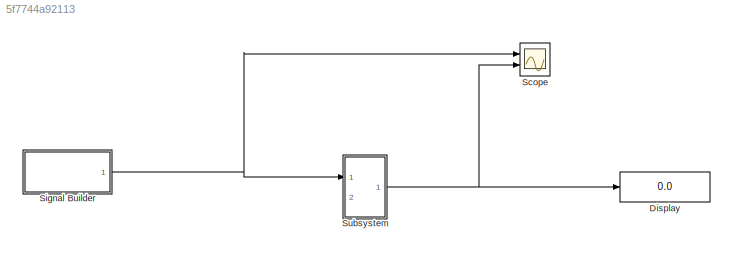
MODEL slx_5f7744a92113
KIND model
CONFIG AbsTol = auto
CONFIG EnableMultiTasking = off
CONFIG FixedStep = auto
CONFIG MaxStep = auto
CONFIG MinStep = auto
CONFIG RelTol = 1e-3
CONFIG SampleTimeConstraint = Unconstrained
CONFIG SolverName = VariableStepAuto
CONFIG StartTime = 0.0
CONFIG StopTime = 10.0
BLOCK [Display] Display
  Decimation = 1
  Ports = [1]
BLOCK [Scope] Scope
  Floating = off
  NumInputPorts = 2
  Ports = [2]
  ScopeSpecificationString = Simulink.scopes.TimeScopeBlockCfg('CurrentConfiguration', extmgr.ConfigurationSet(extmgr.Configuration('Core','General UI',true),extmgr.Configuration('Core','Source UI',true),extmgr.Configuration('Sources','WiredSimulink',true),extmgr.Configuration('Visuals','Time Domain',true,'SerializedDisplays',{struct('MinYLimReal','-1.25','MaxYLimReal','1.25','YLabelReal','','MinYLimMag','0.00000','MaxYLimMag...<+2074ch>
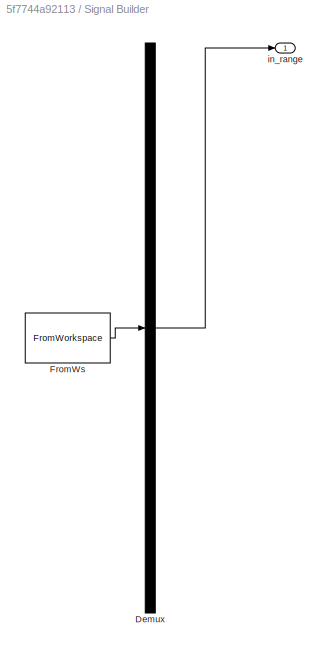
BLOCK [SubSystem] Signal Builder
  ClipboardFcn = sigbuilder_block('clipboard');
  CloseFcn = sigbuilder_block('close');
  ContinueFcn = sigbuilder_block('continue');
  CopyFcn = sigbuilder_block('copy');
  DeleteFcn = sigbuilder_block('delete');
  LoadFcn = sigbuilder_block('load',[437.6 199.2 550.4 400 ]);
  MaskHideContents = on
  ModelCloseFcn = sigbuilder_block('modelClose');
  NameChangeFcn = sigbuilder_block('namechange');
  OpenFcn = sigbuilder_block('open',[437.6 199.2 550.4 400 ]);
  PauseFcn = sigbuilder_block('pause');
  Ports = [0, 1]
  PreSaveFcn = sigbuilder_block('preSave');
  RequestExecContextInheritance = off
  StartFcn = sigbuilder_block('start');
  StopFcn = sigbuilder_block('stop');
  Tag = STV Subsys
BLOCK [Demux] Signal Builder/Demux
  DisplayOption = none
  Outputs = 1
  Ports = [1, 1]
  Tag = STV Demux
BLOCK [FromWorkspace] Signal Builder/FromWs
  Tag = STV FromWs
  VariableName = tuvar
BLOCK [Outport] Signal Builder/in_range
  Tag = STV Outport
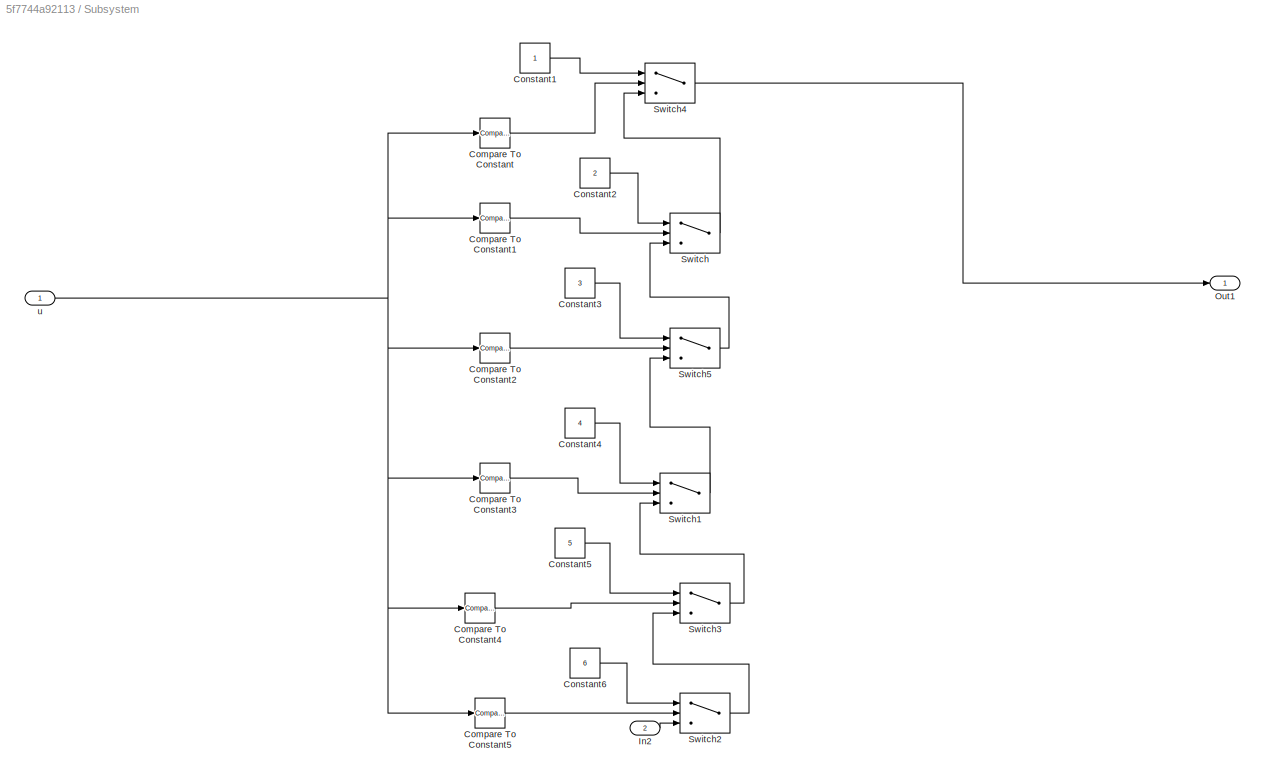
BLOCK [SubSystem] Subsystem
  Ports = [2, 1]
  RequestExecContextInheritance = off
BLOCK [Reference] Subsystem/Compare To Constant  REF=simulink/Logic and Bit
Operations/Compare
To Constant
  Ports = [1, 1]
  SourceBlock = simulink/Logic and Bit\nOperations/Compare\nTo Constant
  SourceProductBaseCode = SL
  SourceType = Compare To Constant
BLOCK [Reference] Subsystem/Compare To Constant1  REF=simulink/Logic and Bit
Operations/Compare
To Constant
  Ports = [1, 1]
  SourceBlock = simulink/Logic and Bit\nOperations/Compare\nTo Constant
  SourceProductBaseCode = SL
  SourceType = Compare To Constant
BLOCK [Reference] Subsystem/Compare To Constant2  REF=simulink/Logic and Bit
Operations/Compare
To Constant
  Ports = [1, 1]
  SourceBlock = simulink/Logic and Bit\nOperations/Compare\nTo Constant
  SourceProductBaseCode = SL
  SourceType = Compare To Constant
BLOCK [Reference] Subsystem/Compare To Constant3  REF=simulink/Logic and Bit
Operations/Compare
To Constant
  Ports = [1, 1]
  SourceBlock = simulink/Logic and Bit\nOperations/Compare\nTo Constant
  SourceProductBaseCode = SL
  SourceType = Compare To Constant
BLOCK [Reference] Subsystem/Compare To Constant4  REF=simulink/Logic and Bit
Operations/Compare
To Constant
  Ports = [1, 1]
  SourceBlock = simulink/Logic and Bit\nOperations/Compare\nTo Constant
  SourceProductBaseCode = SL
  SourceType = Compare To Constant
BLOCK [Reference] Subsystem/Compare To Constant5  REF=simulink/Logic and Bit
Operations/Compare
To Constant
  Ports = [1, 1]
  SourceBlock = simulink/Logic and Bit\nOperations/Compare\nTo Constant
  SourceProductBaseCode = SL
  SourceType = Compare To Constant
BLOCK [Constant] Subsystem/Constant1
BLOCK [Constant] Subsystem/Constant2
  Value = 2
BLOCK [Constant] Subsystem/Constant3
  Value = 3
BLOCK [Constant] Subsystem/Constant4
  Value = 4
BLOCK [Constant] Subsystem/Constant5
  Value = 5
BLOCK [Constant] Subsystem/Constant6
  Value = 6
BLOCK [Inport] Subsystem/In2
  Port = 2
BLOCK [Outport] Subsystem/Out1
BLOCK [Switch] Subsystem/Switch
  InputSameDT = off
  SaturateOnIntegerOverflow = off
BLOCK [Switch] Subsystem/Switch1
  InputSameDT = off
  SaturateOnIntegerOverflow = off
BLOCK [Switch] Subsystem/Switch2
  InputSameDT = off
  SaturateOnIntegerOverflow = off
BLOCK [Switch] Subsystem/Switch3
  InputSameDT = off
  SaturateOnIntegerOverflow = off
BLOCK [Switch] Subsystem/Switch4
  InputSameDT = off
  SaturateOnIntegerOverflow = off
BLOCK [Switch] Subsystem/Switch5
  InputSameDT = off
  SaturateOnIntegerOverflow = off
BLOCK [Inport] Subsystem/u
NET Signal Builder:1 -> Scope:1, Subsystem:1
LINE Subsystem/Compare To Constant1:1 -> Subsystem/Switch:2
LINE Subsystem/Compare To Constant2:1 -> Subsystem/Switch5:2
LINE Subsystem/Compare To Constant3:1 -> Subsystem/Switch1:2
LINE Subsystem/Compare To Constant4:1 -> Subsystem/Switch3:2
LINE Subsystem/Compare To Constant5:1 -> Subsystem/Switch2:2
LINE Subsystem/Compare To Constant:1 -> Subsystem/Switch4:2
LINE Subsystem/Constant1:1 -> Subsystem/Switch4:1
LINE Subsystem/Constant2:1 -> Subsystem/Switch:1
LINE Subsystem/Constant3:1 -> Subsystem/Switch5:1
LINE Subsystem/Constant4:1 -> Subsystem/Switch1:1
LINE Subsystem/Constant5:1 -> Subsystem/Switch3:1
LINE Subsystem/Constant6:1 -> Subsystem/Switch2:1
LINE Subsystem/In2:1 -> Subsystem/Switch2:3
LINE Subsystem/Switch1:1 -> Subsystem/Switch5:3
LINE Subsystem/Switch2:1 -> Subsystem/Switch3:3
LINE Subsystem/Switch3:1 -> Subsystem/Switch1:3
LINE Subsystem/Switch4:1 -> Subsystem/Out1:1
LINE Subsystem/Switch5:1 -> Subsystem/Switch:3
LINE Subsystem/Switch:1 -> Subsystem/Switch4:3
NET Subsystem/u:1 -> Subsystem/Compare To Constant1:1, Subsystem/Compare To Constant2:1, Subsystem/Compare To Constant3:1, Subsystem/Compare To Constant4:1, Subsystem/Compare To Constant5:1, Subsystem/Compare To Constant:1
NET Subsystem:1 -> Display:1, Scope:2
note: NET lines group one-source signal fan-out (src -> all destinations, sorted); 1:1 wires keep LINE
